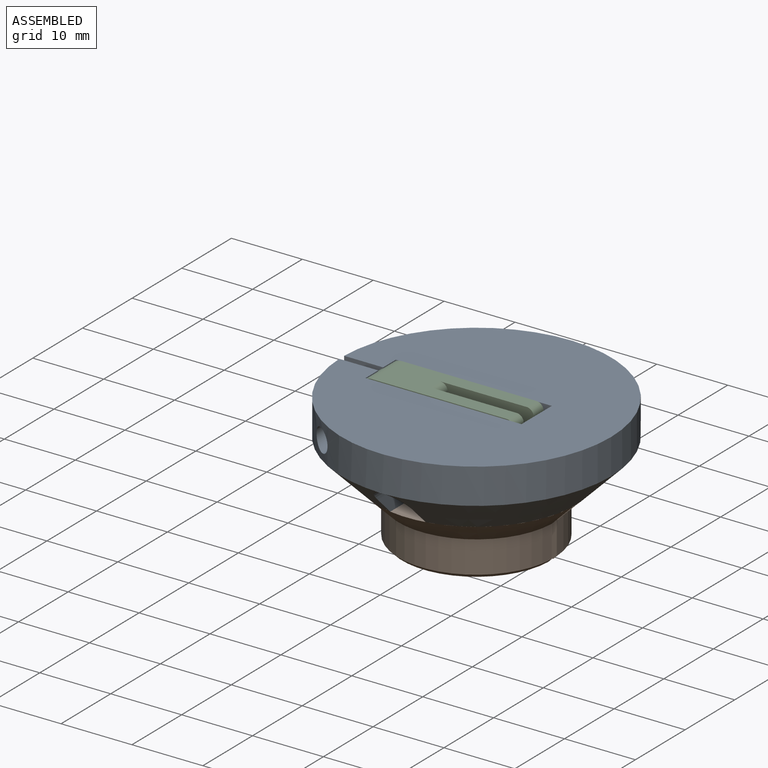
[diagram: assembled view]
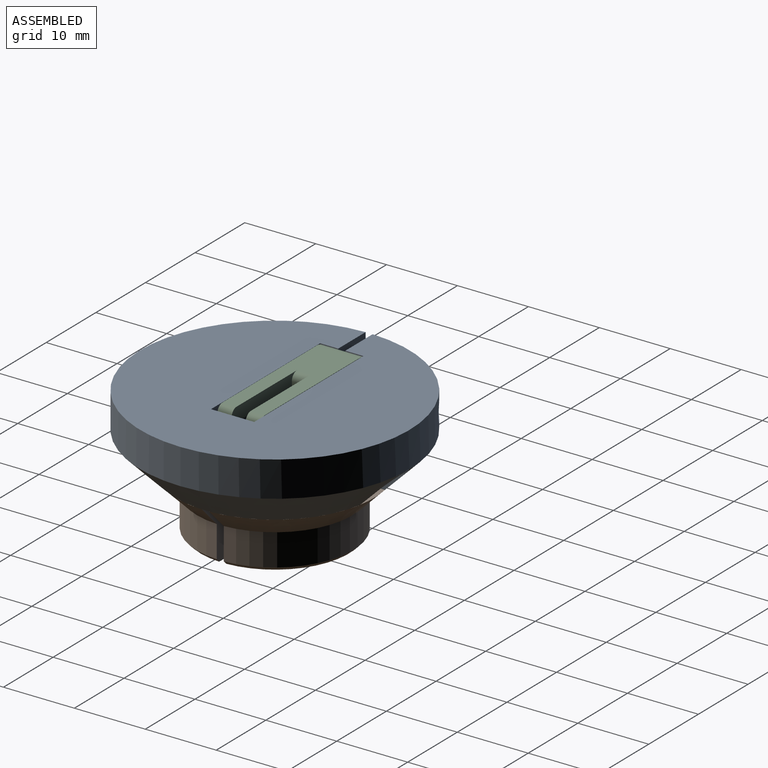
[diagram: assembled view, second angle]
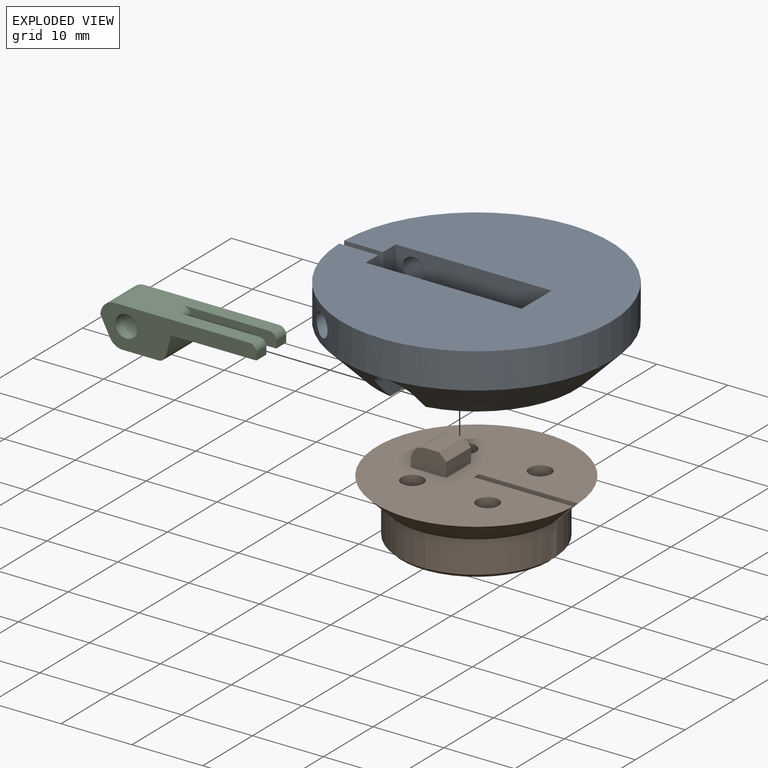
[diagram: exploded view]
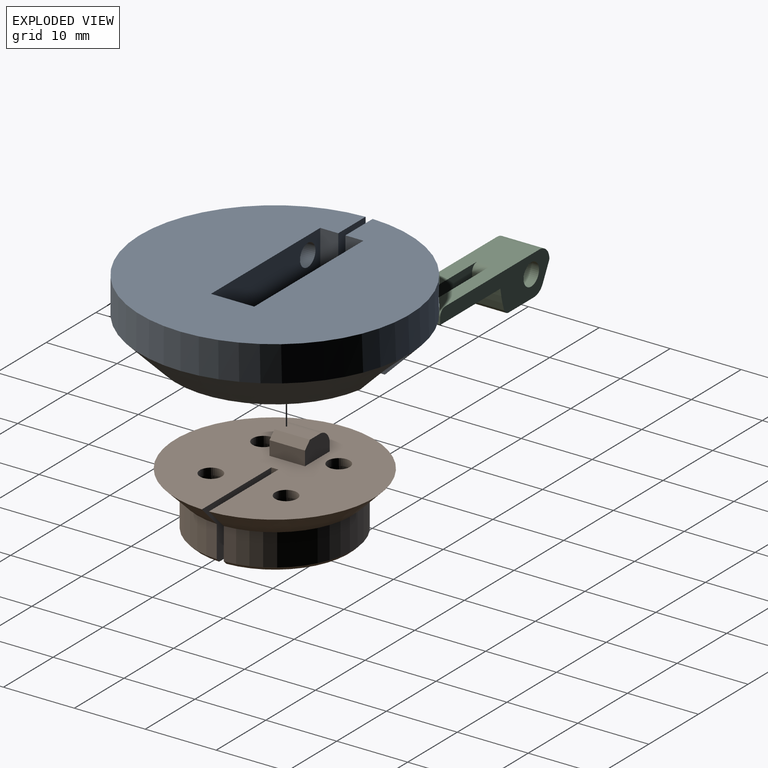
[diagram: exploded view, second angle]
ASSEMBLY  parts=3 mates=3
PART A: 34 faces, bbox 38x38x10 mm
  f0: plane 27x10mm, normal (0,-1,0), area 228.5mm2, adj f4,f5,f7,f9,f11,f15,f16,f18
  f1: plane 10x2.55mm, normal (1,0,0), area 25.5mm2, adj f2,f8,f11,f21
  f2: plane 13.28x11.49mm, normal (0,0,-1), area 82.2mm2, adj f1,f3,f8,f14,f21,f29
  f3: cone r=19mm half-angle=45deg, axis (0,0,1), area 163.8mm2, adj f2,f10,f14,f17,f21
  f4: plane 27.55x11.5mm, normal (0,0,-1), area 164.9mm2, adj f0,f7,f8,f12,f13,f15,f25,f27
  f5: plane 13.28x11.49mm, normal (0,0,-1), area 82.2mm2, adj f0,f6,f9,f16,f22,f23
  f6: cone r=19mm half-angle=45deg, axis (0,0,1), area 163.8mm2, adj f5,f10,f16,f18,f22
  f7: plane 7.5x6.1mm, normal (-1,0,0), area 45.7mm2, adj f0,f4,f8,f31
  f8: plane 27x10mm, normal (0,1,0), area 228.5mm2, adj f1,f2,f4,f7,f11,f13,f14,f17
  f9: plane 10x2.55mm, normal (1,0,0), area 25.5mm2, adj f0,f5,f11,f22
  f10: cylinder r=19mm len=38mm, axis (0,0,-1), area 573.4mm2, adj f3,f6,f11,f12,f19,f20,f21,f22
  f11: plane 38x37.99mm, normal (0,0,1), area 994.4mm2, adj f0,f1,f8,f9,f10,f21,f22,f32
  f12: cone r=19mm half-angle=45deg, axis (0,0,1), area 334.8mm2, adj f4,f10,f13,f15,f17,f18
  f13: plane 13.29x2.53mm, normal (-1,0,0), area 30mm2, adj f4,f8,f12,f17
  f14: plane 13.29x2.53mm, normal (1,0,0), area 30mm2, adj f2,f3,f8,f17
  f15: plane 13.29x2.53mm, normal (-1,0,0), area 30mm2, adj f0,f4,f12,f18
  f16: plane 13.29x2.53mm, normal (1,0,0), area 30mm2, adj f0,f5,f6,f18
  f17: cylinder r=2.5mm len=15.95mm, axis (0,1,0), area 117.4mm2, adj f3,f8,f12,f13,f14
  f18: cylinder r=2.5mm len=15.95mm, axis (0,1,0), area 117.4mm2, adj f0,f6,f12,f15,f16
  f19: cylinder r=1.55mm len=13.43mm, axis (0,-1,0), area 120.6mm2, adj f8,f10
  f20: cylinder r=1.55mm len=13.43mm, axis (0,-1,0), area 120.6mm2, adj f0,f10
  f21: plane 10.02x5.52mm, normal (0,1,0), area 42.4mm2, adj f1,f2,f3,f10,f11
  f22: plane 10.02x5.52mm, normal (0,-1,0), area 42.4mm2, adj f5,f6,f9,f10,f11
  f23: cylinder r=1mm len=5mm, axis (0,0,-1), area 31.4mm2, adj f5,f24
  f24: plane 2x2mm, normal (0,0,-1), area 3.1mm2, adj f23
  f25: cylinder r=1mm len=5mm, axis (0,0,-1), area 31.4mm2, adj f4,f26
  f26: plane 2x2mm, normal (0,0,-1), area 3.1mm2, adj f25
  f27: cylinder r=1mm len=5mm, axis (0,0,-1), area 31.4mm2, adj f4,f28
  f28: plane 2x2mm, normal (0,0,-1), area 3.1mm2, adj f27
  f29: cylinder r=1mm len=5mm, axis (0,0,-1), area 31.4mm2, adj f2,f30
  f30: plane 2x2mm, normal (0,0,-1), area 3.1mm2, adj f29
  f31: plane 6.1x3mm, normal (0,0,-1), area 18.3mm2, adj f0,f7,f8,f33
  f32: plane 6.1x0.5mm, normal (-1,0,0), area 3.1mm2, adj f0,f8,f11,f33
  f33: cylinder r=2mm len=6.1mm, axis (0,-1,0), area 19.2mm2, adj f0,f8,f31,f32
PART B: 27 faces, bbox 28x28x11 mm
  f0: plane 28x27.99mm, normal (0,0,1), area 546.6mm2, adj f1,f2,f3,f4,f5,f6,f7,f8
  f1: cylinder r=1.55mm len=3.1mm, axis (0,0,-1), area 9.7mm2, adj f0,f16
  f2: cylinder r=1.55mm len=3.1mm, axis (0,0,-1), area 9.7mm2, adj f0,f14
  f3: cylinder r=1.55mm len=3.1mm, axis (0,0,-1), area 9.7mm2, adj f0,f12
  f4: cylinder r=1.55mm len=3.1mm, axis (0,0,-1), area 9.7mm2, adj f0,f10
  f5: plane 8x1mm, normal (-1,0,0), area 8mm2, adj f0,f6,f7,f18
  f6: plane 14.01x8.01mm, normal (0,-1,0), area 92.3mm2, adj f0,f5,f8,f17,f18,f25
  f7: plane 14.01x8.01mm, normal (0,1,0), area 92.3mm2, adj f0,f5,f8,f17,f18,f25
  f8: cone r=14mm half-angle=45deg, axis (0,0,1), area 328.9mm2, adj f0,f6,f7,f17
  f9: cylinder r=2.5mm len=7mm, axis (0,0,-1), area 110mm2, adj f10,f18
  f10: plane 5x5mm, normal (0,0,-1), area 12.1mm2, adj f4,f9
  f11: cylinder r=2.5mm len=7mm, axis (0,0,-1), area 110mm2, adj f12,f18
  f12: plane 5x5mm, normal (0,0,-1), area 12.1mm2, adj f3,f11
  f13: cylinder r=2.5mm len=7mm, axis (0,0,-1), area 110mm2, adj f14,f18
  f14: plane 5x5mm, normal (0,0,-1), area 12.1mm2, adj f2,f13
  f15: cylinder r=2.5mm len=7mm, axis (0,0,-1), area 110mm2, adj f16,f18
  f16: plane 5x5mm, normal (0,0,-1), area 12.1mm2, adj f1,f15
  f17: cylinder r=11mm len=22mm, axis (0,0,1), area 306.5mm2, adj f6,f7,f8,f25
  f18: plane 21x20.99mm, normal (0,0,-1), area 257.3mm2, adj f5,f6,f7,f9,f11,f13,f15,f25
  f19: plane 5x3mm, normal (0,-1,0), area 13.6mm2, adj f0,f20,f22,f23,f24,f26
  f20: plane 5x1mm, normal (1,0,0), area 5mm2, adj f0,f19,f21,f24
  f21: plane 5x3mm, normal (0,1,0), area 13.6mm2, adj f0,f20,f22,f23,f24,f26
  f22: plane 5x2mm, normal (-1,0,0), area 10mm2, adj f0,f19,f21,f26
  f23: plane 5x2mm, normal (0,0,1), area 10mm2, adj f19,f21,f24,f26
  f24: cylinder r=2mm len=5mm, axis (0,-1,0), area 15.7mm2, adj f19,f20,f21,f23
  f25: cone r=10.5mm half-angle=45deg, axis (0,0,1), area 47.1mm2, adj f6,f7,f17,f18
  f26: plane 5x1mm, normal (-0.71,0,0.71), area 7.1mm2, adj f19,f21,f22,f23
PART C: 20 faces, bbox 22x6x5.7 mm
  f0: plane 2x1mm, normal (-1,0,0), area 2mm2, adj f5,f9,f12,f18
  f1: plane 12.13x2mm, normal (0,0,-1), area 24.3mm2, adj f4,f6,f10,f13
  f2: plane 6x2.59mm, normal (0.89,0,-0.46), area 17.5mm2, adj f9,f10,f14,f15
  f3: plane 19x6mm, normal (0,0,1), area 89.7mm2, adj f9,f10,f12,f13,f14,f16,f17,f18
  f4: plane 2x1mm, normal (-1,0,0), area 2mm2, adj f1,f10,f13,f17
  f5: plane 12.13x2mm, normal (0,0,-1), area 24.3mm2, adj f0,f6,f9,f12
  f6: cylinder r=15mm len=6mm, axis (0,1,0), area 18.6mm2, adj f1,f5,f9,f10,f11,f19
  f7: cylinder r=1.55mm len=6mm, axis (0,1,0), area 58.4mm2, adj f9,f10
  f8: plane 6x5.08mm, normal (0,0,-1), area 30.5mm2, adj f9,f10,f15,f19
  f9: plane 22x5.68mm, normal (0,-1,0), area 66.3mm2, adj f0,f2,f3,f5,f6,f7,f8,f14
  f10: plane 22x5.68mm, normal (0,1,0), area 66.3mm2, adj f1,f2,f3,f4,f6,f7,f8,f14
  f11: plane 2x1mm, normal (-1,0,0), area 2mm2, adj f6,f12,f13,f16
  f12: plane 13.13x2mm, normal (0,1,0), area 24.3mm2, adj f0,f3,f5,f11,f16,f18
  f13: plane 13.13x2mm, normal (0,-1,0), area 24.3mm2, adj f1,f3,f4,f11,f16,f17
  f14: cylinder r=2mm len=6mm, axis (0,1,0), area 18.8mm2, adj f2,f3,f9,f10
  f15: cylinder r=2mm len=6mm, axis (0,-1,0), area 13.1mm2, adj f2,f8,f9,f10
  f16: cylinder r=1mm len=2mm, axis (0,-1,0), area 3.1mm2, adj f3,f11,f12,f13
  f17: cylinder r=1mm len=2mm, axis (0,-1,0), area 3.1mm2, adj f3,f4,f10,f13
  f18: cylinder r=1mm len=2mm, axis (0,-1,0), area 3.1mm2, adj f0,f3,f9,f12
  f19: cylinder r=1mm len=6mm, axis (0,1,0), area 7.4mm2, adj f6,f8,f9,f10
PLACE A rot(axis=(0,1,0),0deg) t=(7.57,-21.44,-13.7)mm
PLACE B rot(axis=(0,0,-1),180deg) t=(7.57,-21.44,-16.7)mm
PLACE C rot(axis=(0,0,1),180deg) t=(-49.02,-24.39,-5.65)mm
MATE revolute A.f19 <-> C.f7  axis (0,-1,0) through (-3.43,-18.39,-6.2)mm
MATE planar A.f5 <-> B.f0  axis (0,0,-1) through (0.48,-14.08,-13.7)mm
MATE cylindrical A.f25 <-> B.f1  axis (0,0,-1) through (12.88,-26.74,-13.7)mm
